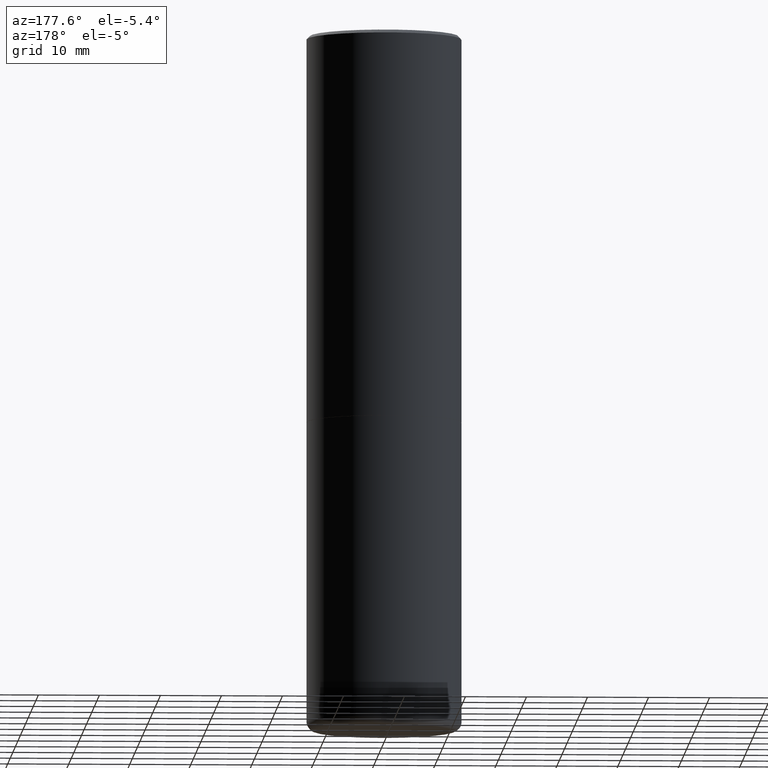
[diagram: clean part render]
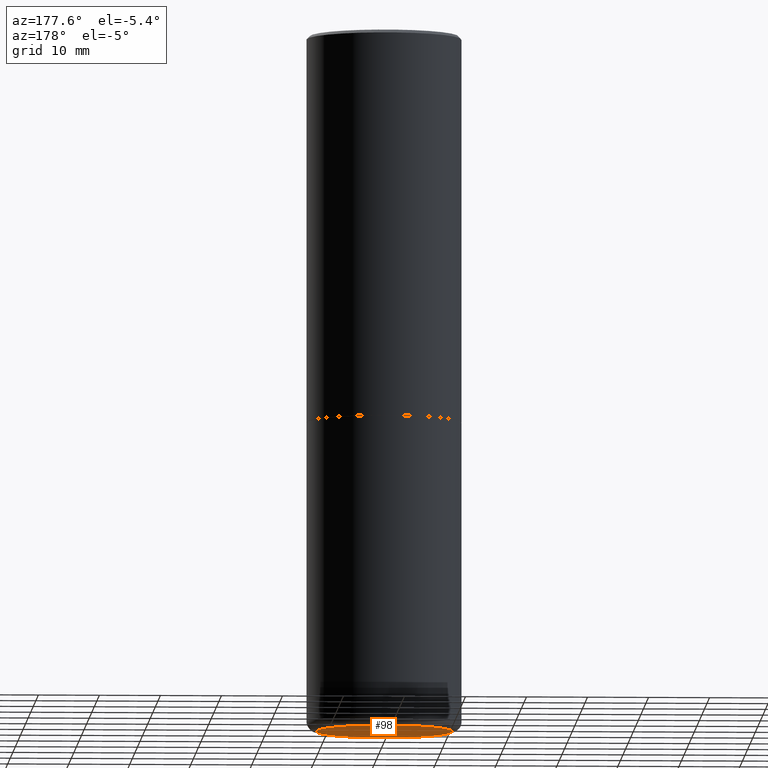
[diagram: same view with one face highlighted and labeled with its STEP entity id]
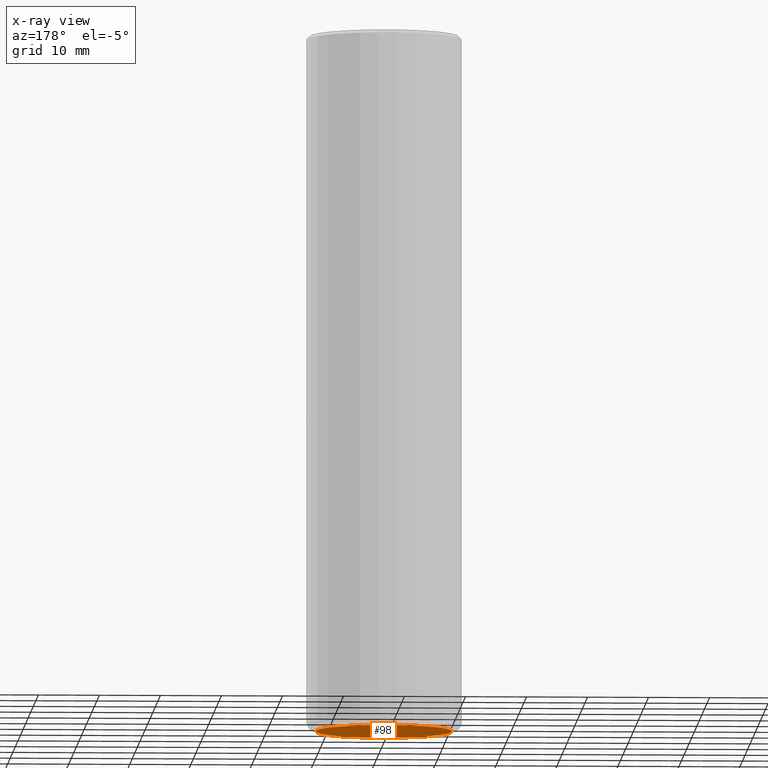
[diagram: x-ray of the same camera — body ghosted, the highlighted face saturated]
A machine part, auxiliary view. The second image highlights one B-rep face of the part: STEP entity #98.
The next image is the same camera in x-ray: the body ghosted, the highlighted face saturated — about 0% of this face is hidden behind the body in this view.
In plain terms, the highlighted planar face has unit normal (0, -0, -1).
Its self-contained STEP definition (entity closure, byte-faithful):
#14 = EDGE_CURVE ( 'NONE', #312, #115, #348, .T. ) ;
#27 = DIRECTION ( 'NONE',  ( -2.445468806185136597E-29, 3.491481338843145583E-15, 1.000000000000000000 ) ) ;
#32 = DIRECTION ( 'NONE',  ( 1.000000000000000000, -6.982962677686262766E-15, 0.000000000000000000 ) ) ;
#58 = DIRECTION ( 'NONE',  ( -2.445468806185136597E-29, 3.491481338843145583E-15, 1.000000000000000000 ) ) ;
#96 = AXIS2_PLACEMENT_3D ( 'NONE', #372, #27, #342 ) ;
#98 = ADVANCED_FACE ( 'NONE', ( #246 ), #284, .T. ) ;
#105 = AXIS2_PLACEMENT_3D ( 'NONE', #277, #58, #32 ) ;
#107 = CARTESIAN_POINT ( 'NONE',  ( -0.4400000000000000022, -1.226737072655639127E-14, -4.499999999999999112 ) ) ;
#113 = DIRECTION ( 'NONE',  ( -1.000000000000000000, 6.982962677686265922E-15, -4.876176775795935793E-29 ) ) ;
#115 = VERTEX_POINT ( 'NONE', #107 ) ;
#135 = AXIS2_PLACEMENT_3D ( 'NONE', #399, #244, #113 ) ;
#217 = EDGE_LOOP ( 'NONE', ( #385, #229 ) ) ;
#229 = ORIENTED_EDGE ( 'NONE', *, *, #374, .F. ) ;
#231 = CARTESIAN_POINT ( 'NONE',  ( 0.4400000000000000022, -1.878416960297611046E-14, -4.499999999999999112 ) ) ;
#244 = DIRECTION ( 'NONE',  ( 2.438088387897960049E-29, -3.491481338843145188E-15, -1.000000000000000000 ) ) ;
#246 = FACE_OUTER_BOUND ( 'NONE', #217, .T. ) ;
#277 = CARTESIAN_POINT ( 'NONE',  ( 1.100460962783311244E-28, -1.571166602479415374E-14, -4.499999999999999112 ) ) ;
#284 = PLANE ( 'NONE',  #135 ) ;
#312 = VERTEX_POINT ( 'NONE', #231 ) ;
#342 = DIRECTION ( 'NONE',  ( 1.000000000000000000, -6.982962677686262766E-15, 0.000000000000000000 ) ) ;
#348 = CIRCLE ( 'NONE', #96, 0.4400000000000000022 ) ;
#372 = CARTESIAN_POINT ( 'NONE',  ( 1.100460962783311244E-28, -1.571166602479415374E-14, -4.499999999999999112 ) ) ;
#374 = EDGE_CURVE ( 'NONE', #115, #312, #377, .T. ) ;
#377 = CIRCLE ( 'NONE', #105, 0.4400000000000000022 ) ;
#385 = ORIENTED_EDGE ( 'NONE', *, *, #14, .F. ) ;
#399 = CARTESIAN_POINT ( 'NONE',  ( 1.490659901937463335E-28, -1.012379512866270429E-14, -4.499999999999999112 ) ) ;